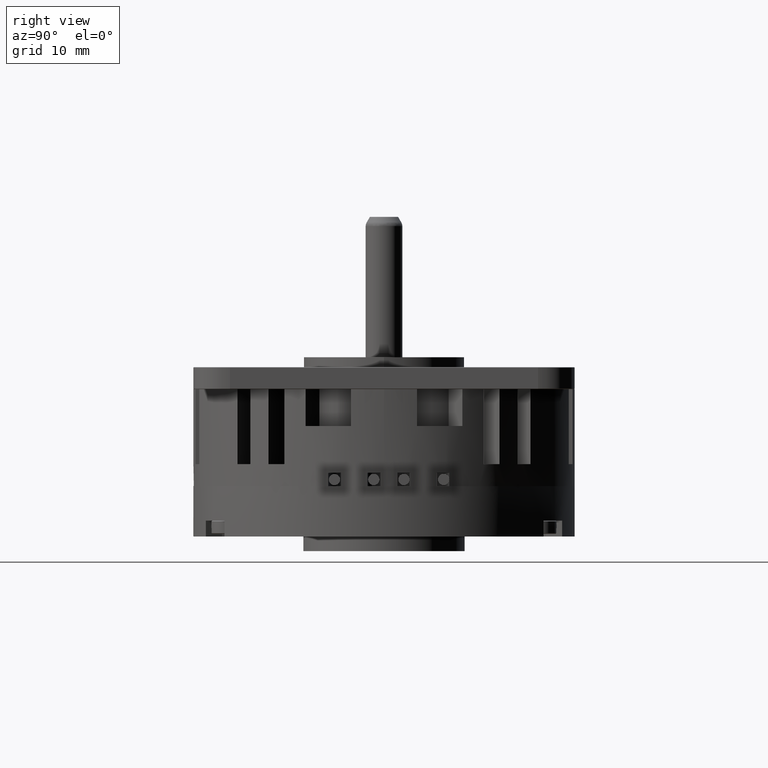
[diagram: clean part render]
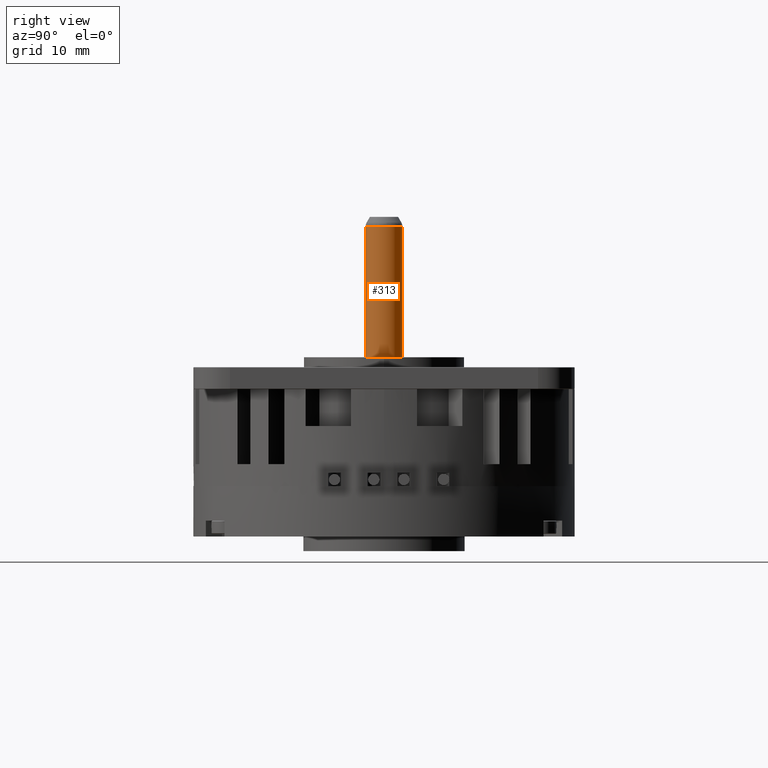
[diagram: same view with one face highlighted and labeled with its STEP entity id]
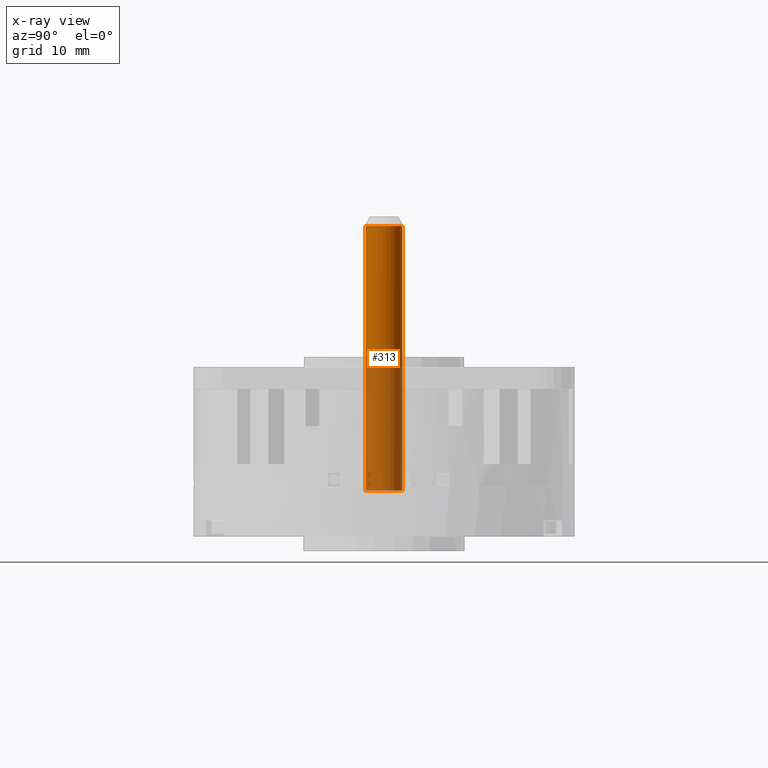
[diagram: x-ray of the same camera — body ghosted, the highlighted face saturated]
A machine part, right view. The second image highlights one B-rep face of the part: STEP entity #313.
The next image is the same camera in x-ray: the body ghosted, the highlighted face saturated — about 47% of this face is hidden behind the body in this view.
In plain terms, the highlighted cylindrical surface (edge-blend (fillet) strip) has radius 2.5 mm, axis along (0, 0, 1).
Its self-contained STEP definition (entity closure, byte-faithful):
#25=CARTESIAN_POINT('',(1.803201300224E1,0.E0,0.E0));
#26=DIRECTION('',(-1.E0,0.E0,0.E0));
#27=DIRECTION('',(0.E0,1.E0,-9.016465692266E-12));
#28=AXIS2_PLACEMENT_3D('',#25,#26,#27);
#30=CARTESIAN_POINT('',(1.803201300224E1,0.E0,0.E0));
#31=DIRECTION('',(-1.E0,0.E0,0.E0));
#32=DIRECTION('',(0.E0,-9.997307227903E-1,-2.320521297385E-2));
#33=AXIS2_PLACEMENT_3D('',#30,#31,#32);
#55=DIRECTION('',(1.E0,0.E0,-1.843186516027E-11));
#56=VECTOR('',#55,3.606402845694E1);
#57=CARTESIAN_POINT('',(-1.803201538990E1,-2.5E0,3.555489448781E-10));
#58=LINE('',#57,#56);
#59=CARTESIAN_POINT('',(-1.803201532598E1,0.E0,0.E0));
#60=DIRECTION('',(1.E0,0.E0,0.E0));
#61=DIRECTION('',(0.E0,-1.E0,0.E0));
#62=AXIS2_PLACEMENT_3D('',#59,#60,#61);
#64=CARTESIAN_POINT('',(-1.803201532598E1,0.E0,0.E0));
#65=DIRECTION('',(1.E0,0.E0,0.E0));
#66=DIRECTION('',(0.E0,9.996799739003E-1,-2.529722875440E-2));
#67=AXIS2_PLACEMENT_3D('',#64,#65,#66);
#119=DIRECTION('',(1.E0,0.E0,1.843186756533E-11));
#120=VECTOR('',#119,3.606402845694E1);
#121=CARTESIAN_POINT('',(-1.803201538990E1,2.5E0,-3.668194606487E-10));
#122=LINE('',#121,#120);
#201=CARTESIAN_POINT('',(1.803201300224E1,2.5E0,-2.254116423066E-11));
#202=CARTESIAN_POINT('',(1.803201300224E1,-2.499326806976E0,
-5.801303243462E-2));
#203=VERTEX_POINT('',#201);
#204=VERTEX_POINT('',#202);
#205=CARTESIAN_POINT('',(1.803201300224E1,-2.5E0,0.E0));
#206=VERTEX_POINT('',#205);
#207=CARTESIAN_POINT('',(-1.803201532598E1,-2.5E0,0.E0));
#208=CARTESIAN_POINT('',(-1.803201532598E1,2.499199934751E0,
-6.324307188600E-2));
#209=VERTEX_POINT('',#207);
#210=VERTEX_POINT('',#208);
#211=CARTESIAN_POINT('',(-1.803201532598E1,2.5E0,-2.254114950251E-11));
#212=VERTEX_POINT('',#211);
#296=CARTESIAN_POINT('',(-2.123E1,0.E0,0.E0));
#297=DIRECTION('',(1.E0,0.E0,0.E0));
#298=DIRECTION('',(0.E0,-1.E0,0.E0));
#299=AXIS2_PLACEMENT_3D('',#296,#297,#298);
#300=CYLINDRICAL_SURFACE('',#299,2.5E0);
#302=ORIENTED_EDGE('',*,*,#301,.F.);
#304=ORIENTED_EDGE('',*,*,#303,.F.);
#306=ORIENTED_EDGE('',*,*,#305,.T.);
#307=ORIENTED_EDGE('',*,*,#284,.F.);
#308=ORIENTED_EDGE('',*,*,#282,.F.);
#310=ORIENTED_EDGE('',*,*,#309,.F.);
#311=EDGE_LOOP('',(#302,#304,#306,#307,#308,#310));
#312=FACE_OUTER_BOUND('',#311,.F.);
#313=ADVANCED_FACE('',(#312),#300,.T.);
#29=CIRCLE('',#28,2.5E0);
#34=CIRCLE('',#33,2.5E0);
#63=CIRCLE('',#62,2.5E0);
#68=CIRCLE('',#67,2.5E0);
#282=EDGE_CURVE('',#203,#204,#29,.T.);
#284=EDGE_CURVE('',#204,#206,#34,.T.);
#301=EDGE_CURVE('',#210,#212,#68,.T.);
#303=EDGE_CURVE('',#209,#210,#63,.T.);
#305=EDGE_CURVE('',#209,#206,#58,.T.);
#309=EDGE_CURVE('',#212,#203,#122,.T.);